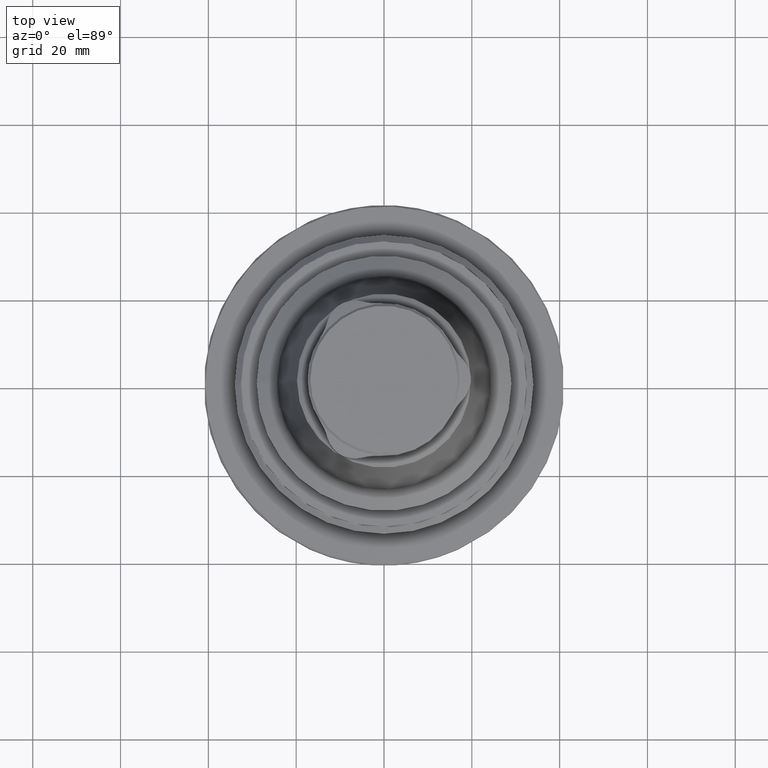
[diagram: clean part render]
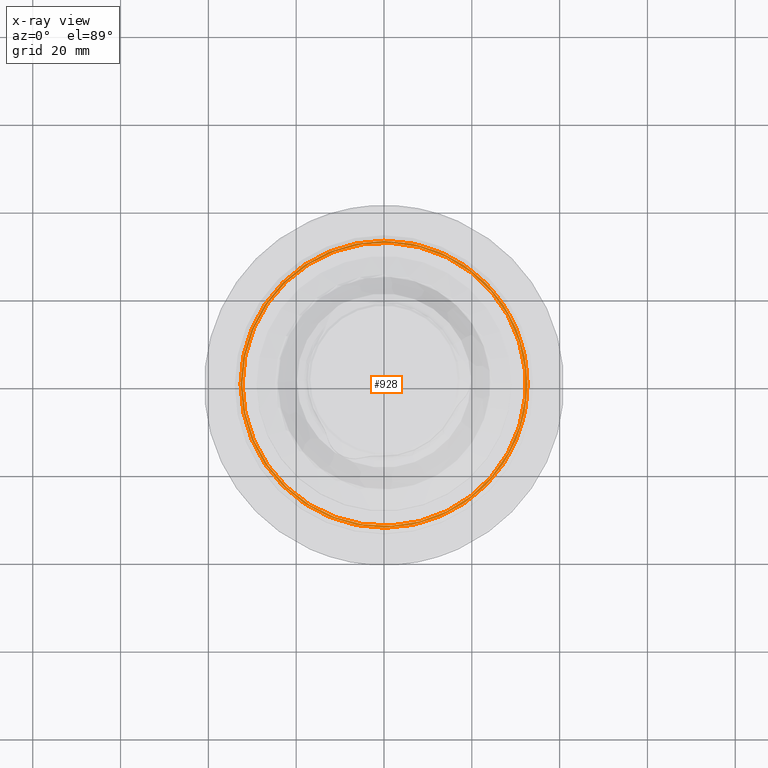
[diagram: x-ray — body ghosted, one internal face saturated and labeled with its STEP entity id]
A machine part, top view, then the same camera in x-ray: the body is ghosted and one INTERNAL B-rep face — a face not visible from any outside direction — is saturated and labeled: STEP entity #928.
In plain terms, the highlighted toroidal blend (fillet) surface has major radius 32.2515 mm and minor (blend) radius 0.6 mm.
Its self-contained STEP definition (entity closure, byte-faithful):
#23=TOROIDAL_SURFACE('',#1033,32.2514710292422,0.6);
#138=CIRCLE('',#1030,32.6757350979542);
#140=CIRCLE('',#1034,32.2524710292422);
#290=ORIENTED_EDGE('',*,*,#478,.F.);
#291=ORIENTED_EDGE('',*,*,#480,.T.);
#478=EDGE_CURVE('',#587,#587,#138,.T.);
#480=EDGE_CURVE('',#589,#589,#140,.T.);
#587=VERTEX_POINT('',#1637);
#589=VERTEX_POINT('',#1643);
#724=EDGE_LOOP('',(#290));
#725=EDGE_LOOP('',(#291));
#821=FACE_BOUND('',#724,.T.);
#822=FACE_BOUND('',#725,.T.);
#928=ADVANCED_FACE('',(#821,#822),#23,.T.);
#1030=AXIS2_PLACEMENT_3D('',#1636,#1219,#1220);
#1033=AXIS2_PLACEMENT_3D('',#1641,#1225,#1226);
#1034=AXIS2_PLACEMENT_3D('',#1642,#1227,#1228);
#1219=DIRECTION('',(-7.30126435159279E-33,-9.52839055771651E-18,-1.));
#1220=DIRECTION('',(-1.,-8.32667268468868E-17,2.89465139560709E-33));
#1225=DIRECTION('',(-7.30126435159279E-33,-9.52839055771651E-18,-1.));
#1226=DIRECTION('',(-1.,-8.32667268468868E-17,2.89465139560709E-33));
#1227=DIRECTION('',(-7.30126435159279E-33,-9.52839055771651E-18,-1.));
#1228=DIRECTION('',(-1.,-8.32667268468868E-17,2.89465139560709E-33));
#1636=CARTESIAN_POINT('',(6.88090493692744E-32,-7.88832559824462E-15,8.42426490204583));
#1637=CARTESIAN_POINT('',(-32.6757350979542,-1.06091271071672E-14,8.42426490204583));
#1641=CARTESIAN_POINT('',(6.57113852487263E-32,-7.89236815199091E-15,8.0000008333339));
#1642=CARTESIAN_POINT('',(7.00921377752908E-32,-7.88665112559661E-15,8.59999999999999));
#1643=CARTESIAN_POINT('',(-32.2524710292422,-1.05722088209257E-14,8.59999999999999));